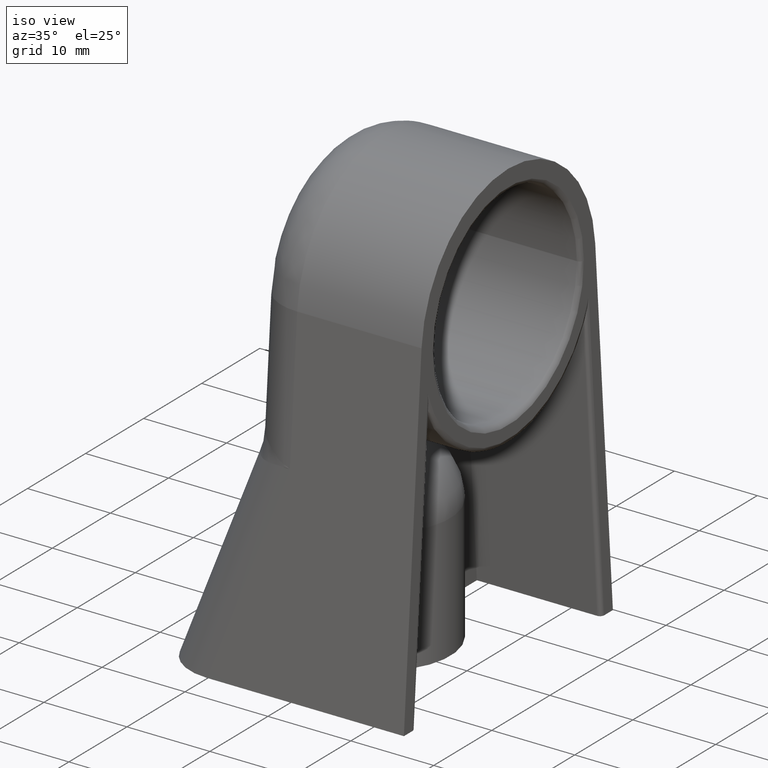
[diagram: clean part render]
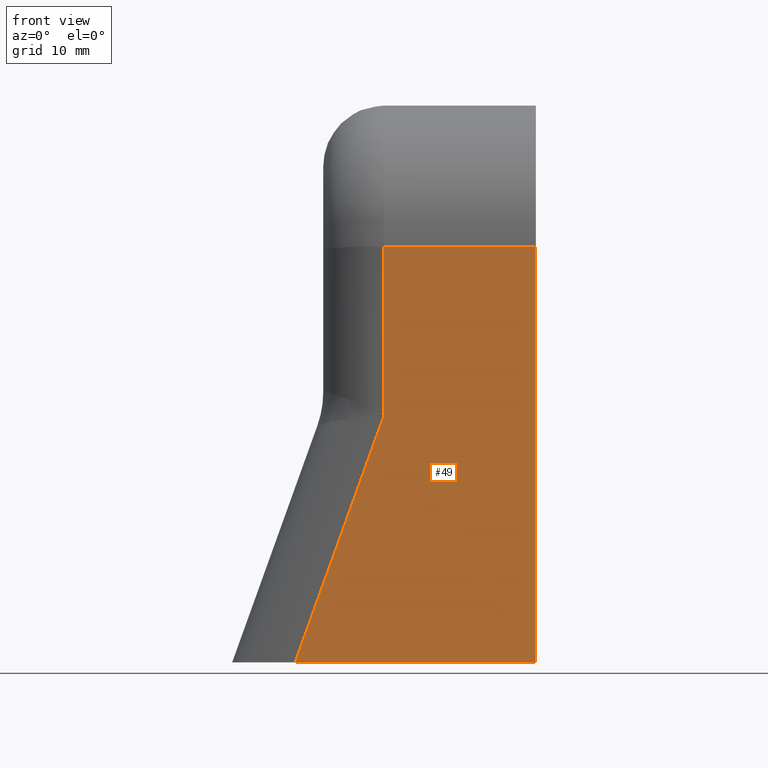
[diagram: tour spotlight — one face highlighted and labeled with its STEP entity id]
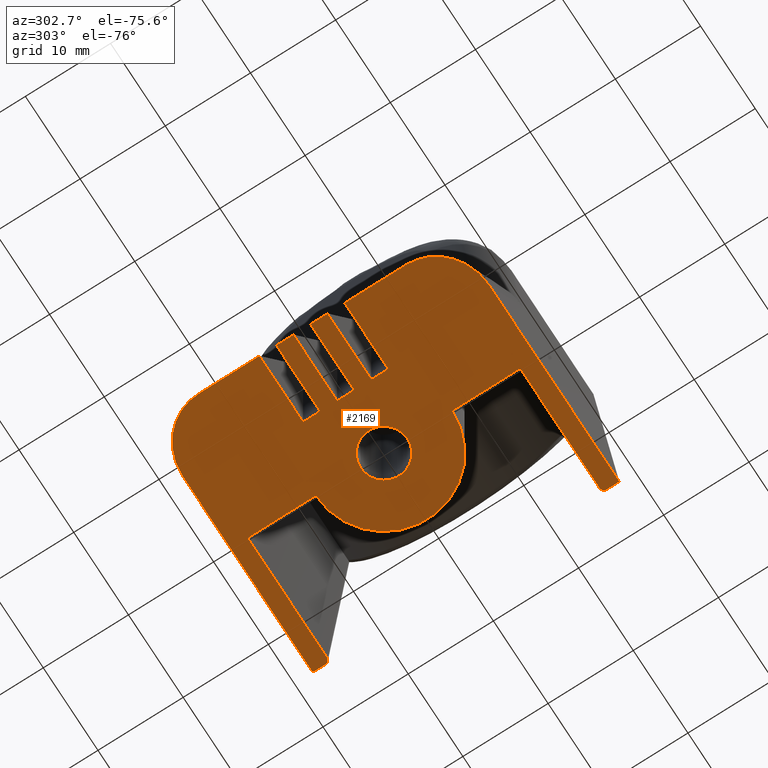
[diagram: tour spotlight — one face highlighted and labeled with its STEP entity id]
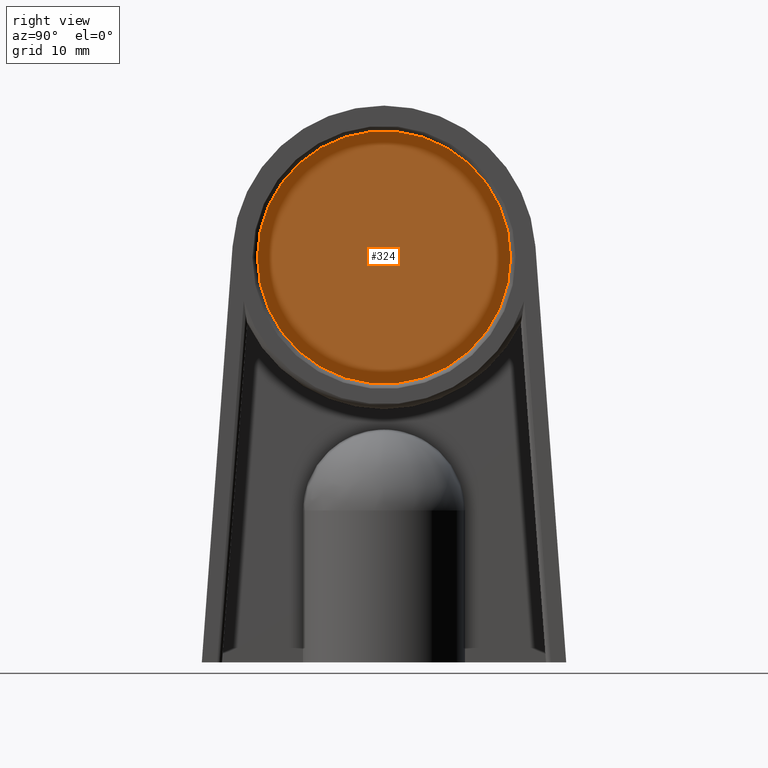
[diagram: tour spotlight — one face highlighted and labeled with its STEP entity id]
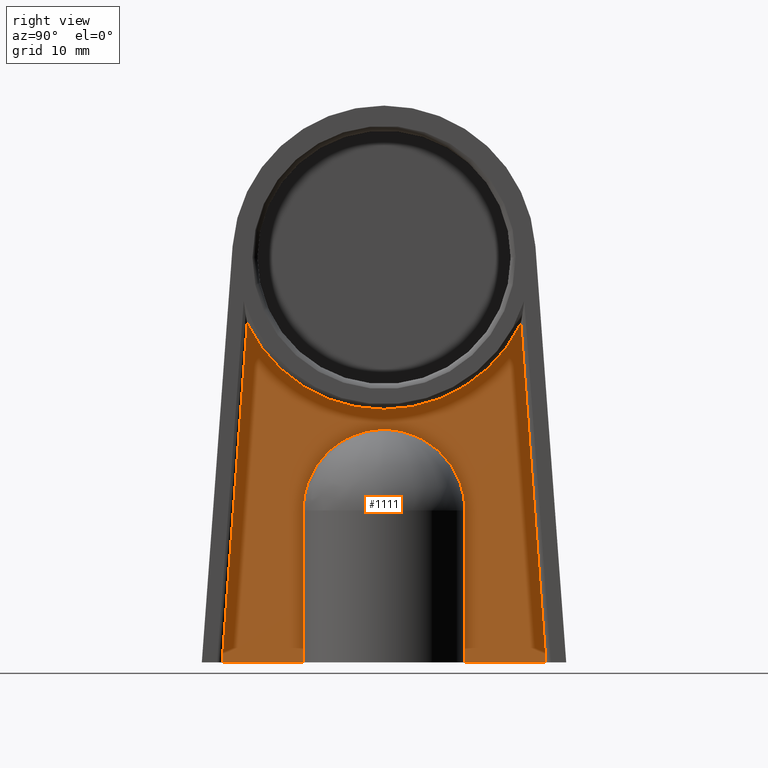
[diagram: tour spotlight — one face highlighted and labeled with its STEP entity id]
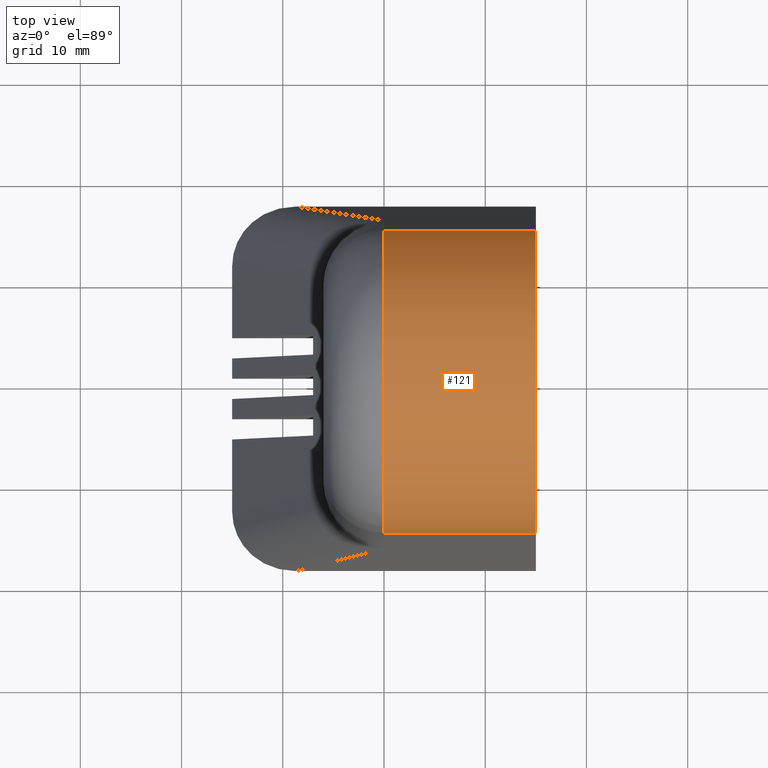
[diagram: tour spotlight — one face highlighted and labeled with its STEP entity id]
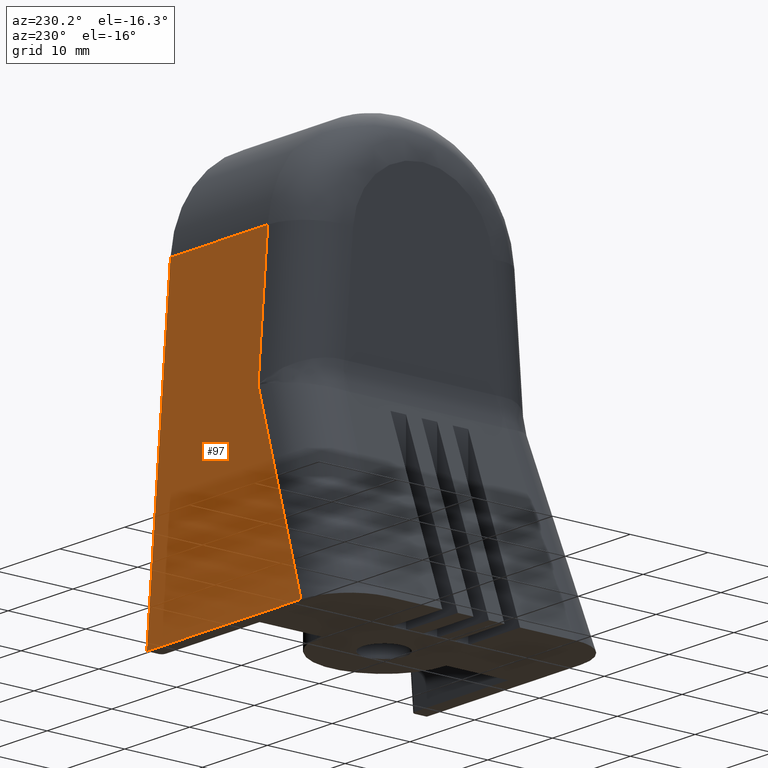
[diagram: tour spotlight — one face highlighted and labeled with its STEP entity id]
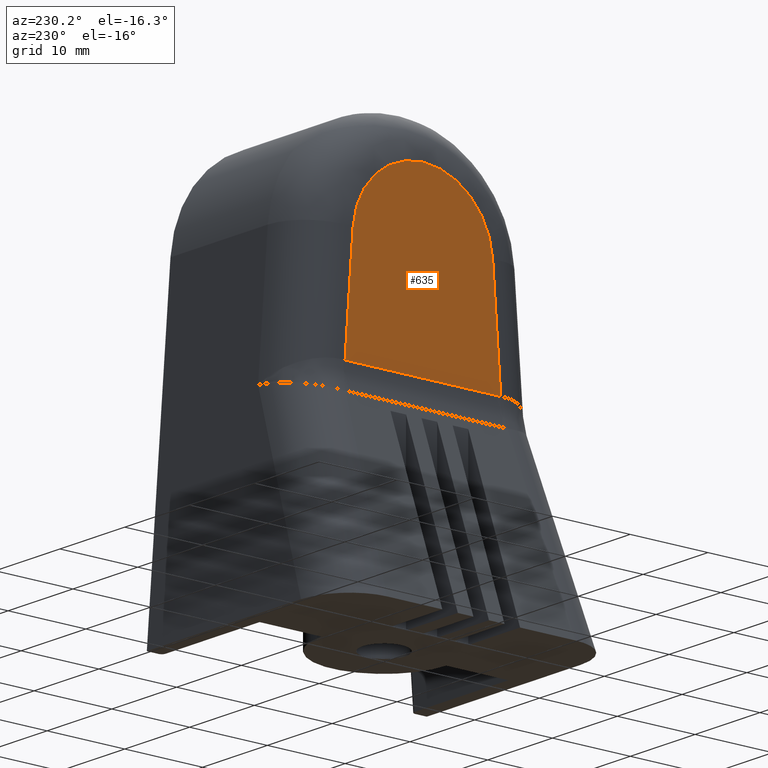
[diagram: tour spotlight — one face highlighted and labeled with its STEP entity id]
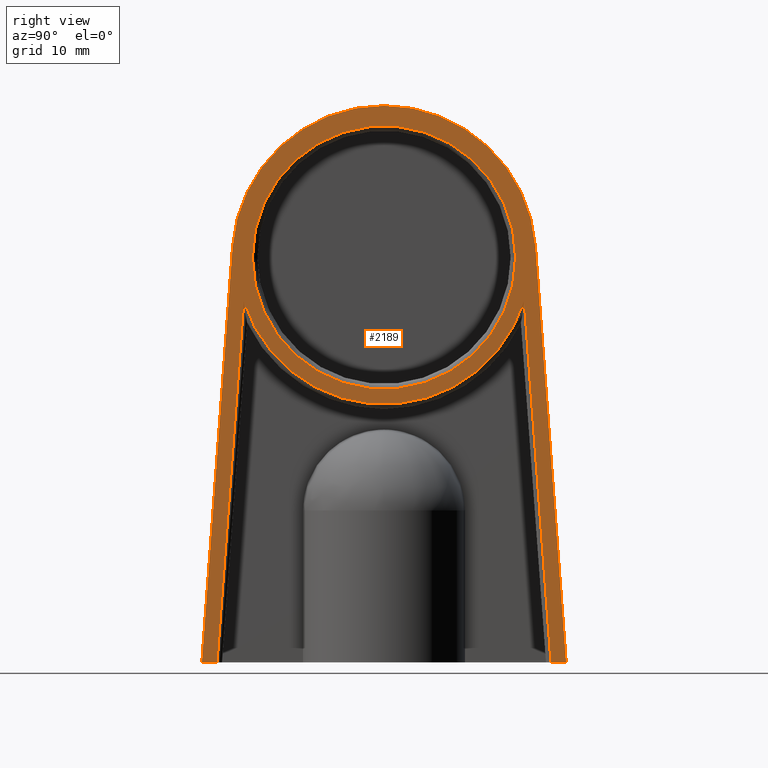
[diagram: tour spotlight — one face highlighted and labeled with its STEP entity id]
A machine part: a face-by-face anatomy tour. The part has 40 B-rep faces; the first image is the clean iso view, then the 8 largest visible faces are spotlighted one at a time (largest first), each with its STEP entity span.

Face 1 — front view, entity #49. In plain terms, the highlighted planar face has unit normal (-0, -0.9973, 0.0738).
Definition (entity closure, byte-faithful):
#2=CARTESIAN_POINT('',(-14.999999999999998,-14.959125059578962,41.106606276810538));
#3=DIRECTION('',(-6.106548E-017,-0.997275003971931,0.073773751787369));
#4=DIRECTION('',(-4.517339E-018,-0.073773751787369,-0.997275003971931));
#5=AXIS2_PLACEMENT_3D('',#2,#3,#4);
#6=PLANE('',#5);
#7=CARTESIAN_POINT('',(15.000000000000002,-14.959125059578966,41.106606276810538));
#8=VERTEX_POINT('',#7);
#9=CARTESIAN_POINT('',(15.000000000000002,-17.999999999999996,1.102182E-015));
#10=VERTEX_POINT('',#9);
#11=CARTESIAN_POINT('',(15.000000000000002,-14.959125059578962,41.106606276810538));
#12=DIRECTION('',(0.0,-0.073773751787369,-0.997275003971931));
#13=VECTOR('',#12,41.218927691049899);
#14=LINE('',#11,#13);
#15=EDGE_CURVE('',#8,#10,#14,.T.);
#16=ORIENTED_EDGE('',*,*,#15,.F.);
#17=CARTESIAN_POINT('',(2.636731E-015,-14.959125059578957,41.106606276810538));
#18=VERTEX_POINT('',#17);
#19=CARTESIAN_POINT('',(1.776357E-015,-14.959125059578964,41.106606276810538));
#20=DIRECTION('',(1.0,0.0,0.0));
#21=VECTOR('',#20,15.0);
#22=LINE('',#19,#21);
#23=EDGE_CURVE('',#18,#8,#22,.T.);
#24=ORIENTED_EDGE('',*,*,#23,.F.);
#25=CARTESIAN_POINT('',(-9.916781E-016,-16.195332106218849,24.395535503275639));
#26=VERTEX_POINT('',#25);
#27=CARTESIAN_POINT('',(8.603746E-016,-14.959125059578964,41.106606276810538));
#28=DIRECTION('',(-1.105259E-016,-0.073773751787369,-0.997275003971931));
#29=VECTOR('',#28,16.756732803868850);
#30=LINE('',#27,#29);
#31=EDGE_CURVE('',#18,#26,#30,.T.);
#32=ORIENTED_EDGE('',*,*,#31,.T.);
#33=CARTESIAN_POINT('',(-8.782392781179231,-17.999999999999993,1.102182E-015));
#34=VERTEX_POINT('',#33);
#35=CARTESIAN_POINT('',(-8.782392781179231,-17.999999999999993,1.102182E-015));
#36=DIRECTION('',(0.337901973678419,0.069434476268191,0.938616593551164));
#37=VECTOR('',#36,25.990948456363334);
#38=LINE('',#35,#37);
#39=EDGE_CURVE('',#34,#26,#38,.T.);
#40=ORIENTED_EDGE('',*,*,#39,.F.);
#41=CARTESIAN_POINT('',(-8.782392781179231,-17.999999999999996,1.102182E-015));
#42=DIRECTION('',(1.0,0.0,0.0));
#43=VECTOR('',#42,23.782392781179233);
#44=LINE('',#41,#43);
#45=EDGE_CURVE('',#34,#10,#44,.T.);
#46=ORIENTED_EDGE('',*,*,#45,.T.);
#47=EDGE_LOOP('',(#16,#24,#32,#40,#46));
#48=FACE_OUTER_BOUND('',#47,.T.);
#49=ADVANCED_FACE('',(#48),#6,.T.);

Face 2 — auxiliary view, entity #2169. In plain terms, the highlighted planar face has unit normal (0, 0, -1).
Definition (entity closure, byte-faithful):
#9=CARTESIAN_POINT('',(15.000000000000002,-17.999999999999996,1.102182E-015));
#10=VERTEX_POINT('',#9);
#33=CARTESIAN_POINT('',(-8.782392781179231,-17.999999999999993,1.102182E-015));
#34=VERTEX_POINT('',#33);
#41=CARTESIAN_POINT('',(-8.782392781179231,-17.999999999999996,1.102182E-015));
#42=DIRECTION('',(1.0,0.0,0.0));
#43=VECTOR('',#42,23.782392781179233);
#44=LINE('',#41,#43);
#45=EDGE_CURVE('',#34,#10,#44,.T.);
#55=CARTESIAN_POINT('',(-8.782392781179228,18.000000000000004,-1.102182E-015));
#56=VERTEX_POINT('',#55);
#57=CARTESIAN_POINT('',(15.000000000000005,18.000000000000004,-1.102182E-015));
#58=VERTEX_POINT('',#57);
#59=CARTESIAN_POINT('',(-8.782392781179230,18.000000000000004,-1.102182E-015));
#60=DIRECTION('',(1.0,0.0,0.0));
#61=VECTOR('',#60,23.782392781179233);
#62=LINE('',#59,#61);
#63=EDGE_CURVE('',#56,#58,#62,.T.);
#330=CARTESIAN_POINT('',(-14.999999999999996,12.133946663825908,-7.429899E-016));
#331=VERTEX_POINT('',#330);
#332=CARTESIAN_POINT('',(-8.623041477318511,11.983605348471295,-7.337842E-016));
#333=DIRECTION('',(1.540744E-033,6.123234E-017,1.000000000000000));
#334=DIRECTION('',(0.979533453288142,-0.201281429569165,1.232493E-017));
#335=AXIS2_PLACEMENT_3D('',#332,#333,#334);
#336=ELLIPSE('',#335,6.392386456007121,6.000000000000002);
#337=EDGE_CURVE('',#56,#331,#336,.T.);
#409=CARTESIAN_POINT('',(-14.999999999999996,5.000000000000001,-3.061617E-016));
#410=VERTEX_POINT('',#409);
#411=CARTESIAN_POINT('',(-14.999999999999995,5.0,-3.061617E-016));
#412=DIRECTION('',(0.0,1.0,0.0));
#413=VECTOR('',#412,7.133946663825906);
#414=LINE('',#411,#413);
#415=EDGE_CURVE('',#410,#331,#414,.T.);
#433=CARTESIAN_POINT('',(-14.999999999999996,3.000000000000001,-1.836970E-016));
#434=VERTEX_POINT('',#433);
#441=CARTESIAN_POINT('',(-14.999999999999996,1.000000000000001,-6.123234E-017));
#442=VERTEX_POINT('',#441);
#443=CARTESIAN_POINT('',(-14.999999999999996,1.0,-6.123234E-017));
#444=DIRECTION('',(0.0,1.0,0.0));
#445=VECTOR('',#444,2.0);
#446=LINE('',#443,#445);
#447=EDGE_CURVE('',#442,#434,#446,.T.);
#465=CARTESIAN_POINT('',(-14.999999999999996,-0.999999999999999,6.123234E-017));
#466=VERTEX_POINT('',#465);
#473=CARTESIAN_POINT('',(-14.999999999999996,-2.999999999999996,1.836970E-016));
#474=VERTEX_POINT('',#473);
#475=CARTESIAN_POINT('',(-14.999999999999996,-2.999999999999996,1.836970E-016));
#476=DIRECTION('',(0.0,1.0,0.0));
#477=VECTOR('',#476,1.999999999999996);
#478=LINE('',#475,#477);
#479=EDGE_CURVE('',#474,#466,#478,.T.);
#497=CARTESIAN_POINT('',(-14.999999999999996,-4.999999999999996,3.061617E-016));
#498=VERTEX_POINT('',#497);
#505=CARTESIAN_POINT('',(-14.999999999999996,-12.133946663825897,7.429899E-016));
#506=VERTEX_POINT('',#505);
#507=CARTESIAN_POINT('',(-14.999999999999996,-12.133946663825899,7.429899E-016));
#508=DIRECTION('',(0.0,1.0,0.0));
#509=VECTOR('',#508,7.133946663825903);
#510=LINE('',#507,#509);
#511=EDGE_CURVE('',#506,#498,#510,.T.);
#569=CARTESIAN_POINT('',(-8.623041477318511,-11.983605348471290,7.337842E-016));
#570=DIRECTION('',(0.0,-6.123234E-017,-1.0));
#571=DIRECTION('',(0.979533453288142,0.201281429569165,-1.232493E-017));
#572=AXIS2_PLACEMENT_3D('',#569,#570,#571);
#573=ELLIPSE('',#572,6.392386456007119,6.0);
#574=EDGE_CURVE('',#34,#506,#573,.T.);
#1033=CARTESIAN_POINT('',(-9.793828E-016,-15.994535116157088,9.793828E-016));
#1034=VERTEX_POINT('',#1033);
#1041=CARTESIAN_POINT('',(3.062855E-015,-8.0,4.898587E-016));
#1042=VERTEX_POINT('',#1041);
#1043=CARTESIAN_POINT('',(-4.898587E-016,-8.0,4.898587E-016));
#1044=DIRECTION('',(0.0,-1.0,0.0));
#1045=VECTOR('',#1044,7.994535116157088);
#1046=LINE('',#1043,#1045);
#1047=EDGE_CURVE('',#1042,#1034,#1046,.T.);
#1087=CARTESIAN_POINT('',(4.898587E-016,8.0,-4.898587E-016));
#1088=VERTEX_POINT('',#1087);
#1095=CARTESIAN_POINT('',(9.793828E-016,15.994535116157088,-9.793828E-016));
#1096=VERTEX_POINT('',#1095);
#1097=CARTESIAN_POINT('',(9.793828E-016,15.994535116157088,-9.793828E-016));
#1098=DIRECTION('',(0.0,-1.0,0.0));
#1099=VECTOR('',#1098,7.994535116157088);
#1100=LINE('',#1097,#1099);
#1101=EDGE_CURVE('',#1096,#1088,#1100,.T.);
#1310=CARTESIAN_POINT('',(0.0,0.0,0.0));
#1311=DIRECTION('',(-6.842278E-049,-6.123234E-017,-1.0));
#1312=DIRECTION('',(6.123234E-017,1.0,-6.123234E-017));
#1313=AXIS2_PLACEMENT_3D('',#1310,#1311,#1312);
#1314=CIRCLE('',#1313,8.0);
#1315=EDGE_CURVE('',#1088,#1042,#1314,.T.);
#1346=CARTESIAN_POINT('',(1.683889E-016,2.750000000000000,-1.683889E-016));
#1347=VERTEX_POINT('',#1346);
#1354=CARTESIAN_POINT('',(-1.683889E-016,-2.750000000000000,1.683889E-016));
#1355=VERTEX_POINT('',#1354);
#1356=CARTESIAN_POINT('',(0.0,0.0,0.0));
#1357=DIRECTION('',(-6.842278E-049,-6.123234E-017,-1.0));
#1358=DIRECTION('',(6.123234E-017,1.0,-6.123234E-017));
#1359=AXIS2_PLACEMENT_3D('',#1356,#1357,#1358);
#1360=CIRCLE('',#1359,2.750000000000000);
#1361=EDGE_CURVE('',#1347,#1355,#1360,.T.);
#1363=CARTESIAN_POINT('',(0.0,0.0,0.0));
#1364=DIRECTION('',(-6.842278E-049,-6.123234E-017,-1.0));
#1365=DIRECTION('',(6.123234E-017,1.0,-6.123234E-017));
#1366=AXIS2_PLACEMENT_3D('',#1363,#1364,#1365);
#1367=CIRCLE('',#1366,2.750000000000000);
#1368=EDGE_CURVE('',#1355,#1347,#1367,.T.);
#1390=CARTESIAN_POINT('',(-6.999999999999996,1.000000000000001,-6.123234E-017));
#1391=VERTEX_POINT('',#1390);
#1398=CARTESIAN_POINT('',(-6.999999999999996,-0.999999999999999,6.123234E-017));
#1399=VERTEX_POINT('',#1398);
#1400=CARTESIAN_POINT('',(-6.999999999999996,-0.999999999999999,6.123234E-017));
#1401=DIRECTION('',(0.0,1.0,0.0));
#1402=VECTOR('',#1401,2.000000000000000);
#1403=LINE('',#1400,#1402);
#1404=EDGE_CURVE('',#1399,#1391,#1403,.T.);
#1421=CARTESIAN_POINT('',(-14.999999999999996,1.000000000000001,-6.123234E-017));
#1422=DIRECTION('',(1.0,0.0,0.0));
#1423=VECTOR('',#1422,8.0);
#1424=LINE('',#1421,#1423);
#1425=EDGE_CURVE('',#442,#1391,#1424,.T.);
#1437=CARTESIAN_POINT('',(-14.999999999999996,-0.999999999999999,6.123234E-017));
#1438=DIRECTION('',(1.0,0.0,0.0));
#1439=VECTOR('',#1438,8.0);
#1440=LINE('',#1437,#1439);
#1441=EDGE_CURVE('',#466,#1399,#1440,.T.);
#1453=CARTESIAN_POINT('',(-6.999999999999996,5.0,-3.061617E-016));
#1454=VERTEX_POINT('',#1453);
#1461=CARTESIAN_POINT('',(-6.999999999999996,3.000000000000000,-1.836970E-016));
#1462=VERTEX_POINT('',#1461);
#1463=CARTESIAN_POINT('',(-6.999999999999996,3.000000000000000,-1.836970E-016));
#1464=DIRECTION('',(0.0,1.0,0.0));
#1465=VECTOR('',#1464,2.000000000000000);
#1466=LINE('',#1463,#1465);
#1467=EDGE_CURVE('',#1462,#1454,#1466,.T.);
#1484=CARTESIAN_POINT('',(-14.999999999999996,5.000000000000001,-3.061617E-016));
#1485=DIRECTION('',(1.0,0.0,0.0));
#1486=VECTOR('',#1485,8.0);
#1487=LINE('',#1484,#1486);
#1488=EDGE_CURVE('',#410,#1454,#1487,.T.);
#1500=CARTESIAN_POINT('',(-14.999999999999996,3.000000000000001,-1.836970E-016));
#1501=DIRECTION('',(1.0,0.0,0.0));
#1502=VECTOR('',#1501,8.0);
#1503=LINE('',#1500,#1502);
#1504=EDGE_CURVE('',#434,#1462,#1503,.T.);
#1516=CARTESIAN_POINT('',(-6.999999999999996,-2.999999999999998,1.836970E-016));
#1517=VERTEX_POINT('',#1516);
#1524=CARTESIAN_POINT('',(-6.999999999999996,-4.999999999999998,3.061617E-016));
#1525=VERTEX_POINT('',#1524);
#1526=CARTESIAN_POINT('',(-6.999999999999996,-4.999999999999998,3.061617E-016));
#1527=DIRECTION('',(0.0,1.0,0.0));
#1528=VECTOR('',#1527,2.000000000000000);
#1529=LINE('',#1526,#1528);
#1530=EDGE_CURVE('',#1525,#1517,#1529,.T.);
#1547=CARTESIAN_POINT('',(-14.999999999999996,-2.999999999999996,1.836970E-016));
#1548=DIRECTION('',(1.0,0.0,0.0));
#1549=VECTOR('',#1548,8.0);
#1550=LINE('',#1547,#1549);
#1551=EDGE_CURVE('',#474,#1517,#1550,.T.);
#1563=CARTESIAN_POINT('',(-14.999999999999996,-4.999999999999996,3.061617E-016));
#1564=DIRECTION('',(1.0,0.0,0.0));
#1565=VECTOR('',#1564,8.0);
#1566=LINE('',#1563,#1565);
#1567=EDGE_CURVE('',#498,#1525,#1566,.T.);
#2053=CARTESIAN_POINT('',(14.500000000000005,15.994535116157088,-9.793828E-016));
#2054=VERTEX_POINT('',#2053);
#2061=CARTESIAN_POINT('',(15.000000000000005,16.495901337117814,-1.010083E-015));
#2062=VERTEX_POINT('',#2061);
#2063=CARTESIAN_POINT('',(14.500000000000005,16.495901337117814,-1.010083E-015));
#2064=DIRECTION('',(6.842278E-049,6.123234E-017,1.0));
#2065=DIRECTION('',(-6.123234E-017,-1.0,6.123234E-017));
#2066=AXIS2_PLACEMENT_3D('',#2063,#2064,#2065);
#2067=ELLIPSE('',#2066,0.501366220960725,0.499999999999999);
#2068=EDGE_CURVE('',#2054,#2062,#2067,.T.);
#2086=CARTESIAN_POINT('',(15.000000000000002,-16.495901337117814,1.010083E-015));
#2087=VERTEX_POINT('',#2086);
#2094=CARTESIAN_POINT('',(14.500000000000002,-15.994535116157088,9.793828E-016));
#2095=VERTEX_POINT('',#2094);
#2096=CARTESIAN_POINT('',(14.500000000000002,-16.495901337117889,1.010083E-015));
#2097=DIRECTION('',(-6.842278E-049,-6.123234E-017,-1.0));
#2098=DIRECTION('',(-6.123234E-017,-1.0,6.123234E-017));
#2099=AXIS2_PLACEMENT_3D('',#2096,#2097,#2098);
#2100=ELLIPSE('',#2099,0.501366220960725,0.499999999999999);
#2101=EDGE_CURVE('',#2095,#2087,#2100,.T.);
#2112=CARTESIAN_POINT('',(-15.000389578063274,-18.000389578063274,1.102206E-015));
#2113=DIRECTION('',(0.0,0.0,-1.0));
#2114=DIRECTION('',(0.0,1.0,0.0));
#2115=AXIS2_PLACEMENT_3D('',#2112,#2113,#2114);
#2116=PLANE('',#2115);
#2117=ORIENTED_EDGE('',*,*,#63,.T.);
#2118=CARTESIAN_POINT('',(15.000000000000005,16.495901337117814,-1.010083E-015));
#2119=DIRECTION('',(0.0,1.0,0.0));
#2120=VECTOR('',#2119,1.504098662882189);
#2121=LINE('',#2118,#2120);
#2122=EDGE_CURVE('',#2062,#58,#2121,.T.);
#2123=ORIENTED_EDGE('',*,*,#2122,.F.);
#2124=ORIENTED_EDGE('',*,*,#2068,.F.);
#2125=CARTESIAN_POINT('',(14.500000000000005,15.994535116157090,-9.793828E-016));
#2126=DIRECTION('',(-1.0,0.0,0.0));
#2127=VECTOR('',#2126,14.500000000000004);
#2128=LINE('',#2125,#2127);
#2129=EDGE_CURVE('',#2054,#1096,#2128,.T.);
#2130=ORIENTED_EDGE('',*,*,#2129,.T.);
#2131=ORIENTED_EDGE('',*,*,#1101,.T.);
#2132=ORIENTED_EDGE('',*,*,#1315,.T.);
#2133=ORIENTED_EDGE('',*,*,#1047,.T.);
#2134=CARTESIAN_POINT('',(14.500000000000002,-15.994535116157087,9.793828E-016));
#2135=DIRECTION('',(-1.0,0.0,0.0));
#2136=VECTOR('',#2135,14.500000000000004);
#2137=LINE('',#2134,#2136);
#2138=EDGE_CURVE('',#2095,#1034,#2137,.T.);
#2139=ORIENTED_EDGE('',*,*,#2138,.F.);
#2140=ORIENTED_EDGE('',*,*,#2101,.T.);
#2141=CARTESIAN_POINT('',(15.000000000000004,-17.999999999999996,1.102182E-015));
#2142=DIRECTION('',(0.0,1.0,0.0));
#2143=VECTOR('',#2142,1.504098662882186);
#2144=LINE('',#2141,#2143);
#2145=EDGE_CURVE('',#10,#2087,#2144,.T.);
#2146=ORIENTED_EDGE('',*,*,#2145,.F.);
#2147=ORIENTED_EDGE('',*,*,#45,.F.);
#2148=ORIENTED_EDGE('',*,*,#574,.T.);
#2149=ORIENTED_EDGE('',*,*,#511,.T.);
#2150=ORIENTED_EDGE('',*,*,#1567,.T.);
#2151=ORIENTED_EDGE('',*,*,#1530,.T.);
#2152=ORIENTED_EDGE('',*,*,#1551,.F.);
#2153=ORIENTED_EDGE('',*,*,#479,.T.);
#2154=ORIENTED_EDGE('',*,*,#1441,.T.);
#2155=ORIENTED_EDGE('',*,*,#1404,.T.);
#2156=ORIENTED_EDGE('',*,*,#1425,.F.);
#2157=ORIENTED_EDGE('',*,*,#447,.T.);
#2158=ORIENTED_EDGE('',*,*,#1504,.T.);
#2159=ORIENTED_EDGE('',*,*,#1467,.T.);
#2160=ORIENTED_EDGE('',*,*,#1488,.F.);
#2161=ORIENTED_EDGE('',*,*,#415,.T.);
#2162=ORIENTED_EDGE('',*,*,#337,.F.);
#2163=EDGE_LOOP('',(#2117,#2123,#2124,#2130,#2131,#2132,#2133,#2139,#2140,#2146,#2147,#2148,#2149,#2150,#2151,#2152,#2153,#2154,#2155,#2156,#2157,#2158,#2159,#2160,#2161,#2162));
#2164=FACE_OUTER_BOUND('',#2163,.T.);
#2165=ORIENTED_EDGE('',*,*,#1368,.F.);
#2166=ORIENTED_EDGE('',*,*,#1361,.F.);
#2167=EDGE_LOOP('',(#2165,#2166));
#2168=FACE_BOUND('',#2167,.T.);
#2169=ADVANCED_FACE('',(#2164,#2168),#2116,.T.);

Face 3 — right view, entity #324. In plain terms, the highlighted planar face has unit normal (1, 0, 0).
Definition (entity closure, byte-faithful):
#299=CARTESIAN_POINT('',(-2.999999999999996,15.000057927716453,24.999942072253020));
#300=DIRECTION('',(1.0,0.0,0.0));
#301=DIRECTION('',(0.0,0.0,1.0));
#302=AXIS2_PLACEMENT_3D('',#299,#300,#301);
#303=PLANE('',#302);
#304=CARTESIAN_POINT('',(-2.999999999999996,12.500000000000005,40.0));
#305=VERTEX_POINT('',#304);
#306=CARTESIAN_POINT('',(-2.999999999999997,-12.499999999999995,40.0));
#307=VERTEX_POINT('',#306);
#308=CARTESIAN_POINT('',(-2.999999999999996,6.185704E-015,40.0));
#309=DIRECTION('',(1.0,-6.123234E-017,3.749399E-033));
#310=DIRECTION('',(6.123234E-017,1.0,-6.123234E-017));
#311=AXIS2_PLACEMENT_3D('',#308,#309,#310);
#312=CIRCLE('',#311,12.500000000000000);
#313=EDGE_CURVE('',#305,#307,#312,.T.);
#314=ORIENTED_EDGE('',*,*,#313,.T.);
#315=CARTESIAN_POINT('',(-2.999999999999996,6.185704E-015,40.0));
#316=DIRECTION('',(1.0,-6.123234E-017,3.749399E-033));
#317=DIRECTION('',(6.123234E-017,1.0,-6.123234E-017));
#318=AXIS2_PLACEMENT_3D('',#315,#316,#317);
#319=CIRCLE('',#318,12.500000000000000);
#320=EDGE_CURVE('',#307,#305,#319,.T.);
#321=ORIENTED_EDGE('',*,*,#320,.T.);
#322=EDGE_LOOP('',(#314,#321));
#323=FACE_OUTER_BOUND('',#322,.T.);
#324=ADVANCED_FACE('',(#323),#303,.T.);

Face 4 — right view, entity #1111. In plain terms, the highlighted planar face has unit normal (1, 0, 0).
Definition (entity closure, byte-faithful):
#1017=CARTESIAN_POINT('',(-1.193337E-015,-19.488669970308656,-7.007923753111839));
#1018=DIRECTION('',(1.0,0.0,0.0));
#1019=DIRECTION('',(0.0,1.0,0.0));
#1020=AXIS2_PLACEMENT_3D('',#1017,#1018,#1019);
#1021=PLANE('',#1020);
#1022=CARTESIAN_POINT('',(8.276559E-016,13.516647258285571,33.496136002722608));
#1023=VERTEX_POINT('',#1022);
#1024=CARTESIAN_POINT('',(-8.276559E-016,-13.516647258285577,33.496136002722558));
#1025=VERTEX_POINT('',#1024);
#1026=CARTESIAN_POINT('',(1.704988E-031,5.329071E-015,40.000000000000007));
#1027=DIRECTION('',(-1.0,6.123234E-017,-3.081488E-033));
#1028=DIRECTION('',(-5.517706E-017,-0.901109817219037,-0.433590933151829));
#1029=AXIS2_PLACEMENT_3D('',#1026,#1027,#1028);
#1030=CIRCLE('',#1029,14.999999999999989);
#1031=EDGE_CURVE('',#1023,#1025,#1030,.T.);
#1032=ORIENTED_EDGE('',*,*,#1031,.T.);
#1033=CARTESIAN_POINT('',(-9.793828E-016,-15.994535116157088,9.793828E-016));
#1034=VERTEX_POINT('',#1033);
#1035=CARTESIAN_POINT('',(-8.276559E-016,-13.516647258285577,33.496136002722551));
#1036=DIRECTION('',(-4.517339E-018,-0.073773751787369,-0.997275003971931));
#1037=VECTOR('',#1036,33.587662248943033);
#1038=LINE('',#1035,#1037);
#1039=EDGE_CURVE('',#1025,#1034,#1038,.T.);
#1040=ORIENTED_EDGE('',*,*,#1039,.T.);
#1041=CARTESIAN_POINT('',(3.062855E-015,-8.0,4.898587E-016));
#1042=VERTEX_POINT('',#1041);
#1043=CARTESIAN_POINT('',(-4.898587E-016,-8.0,4.898587E-016));
#1044=DIRECTION('',(0.0,-1.0,0.0));
#1045=VECTOR('',#1044,7.994535116157088);
#1046=LINE('',#1043,#1045);
#1047=EDGE_CURVE('',#1042,#1034,#1046,.T.);
#1048=ORIENTED_EDGE('',*,*,#1047,.F.);
#1049=CARTESIAN_POINT('',(4.839212E-015,-7.999999999999999,15.0));
#1050=VERTEX_POINT('',#1049);
#1051=CARTESIAN_POINT('',(3.062855E-015,-8.0,4.898587E-016));
#1052=DIRECTION('',(0.0,0.0,1.0));
#1053=VECTOR('',#1052,15.0);
#1054=LINE('',#1051,#1053);
#1055=EDGE_CURVE('',#1042,#1050,#1054,.T.);
#1056=ORIENTED_EDGE('',*,*,#1055,.T.);
#1057=CARTESIAN_POINT('',(1.735918E-047,1.408344E-015,23.0));
#1058=VERTEX_POINT('',#1057);
#1059=CARTESIAN_POINT('',(1.735918E-047,1.408344E-015,23.0));
#1060=CARTESIAN_POINT('',(-1.444674E-017,-0.235933228766618,23.0));
#1061=CARTESIAN_POINT('',(-5.284360E-017,-0.863001493992146,22.972224076223242));
#1062=CARTESIAN_POINT('',(-1.454947E-016,-2.376109016898513,22.725517590091513));
#1063=CARTESIAN_POINT('',(-2.703129E-016,-4.414544804670387,21.853812521275259));
#1064=CARTESIAN_POINT('',(-3.930465E-016,-6.418936653335783,20.020826234842332));
#1065=CARTESIAN_POINT('',(-4.620668E-016,-7.546123056102462,17.942043850855129));
#1066=CARTESIAN_POINT('',(-4.865356E-016,-7.945729469165522,16.210977359825478));
#1067=CARTESIAN_POINT('',(-4.898587E-016,-7.999999999999999,15.327043926945123));
#1068=CARTESIAN_POINT('',(-4.898587E-016,-7.999999999999999,15.0));
#1069=B_SPLINE_CURVE_WITH_KNOTS('',3,(#1059,#1060,#1061,#1062,#1063,#1064,#1065,#1066,#1067,#1068),.UNSPECIFIED.,.F.,.U.,(4,1,1,1,1,1,1,4),(0.0,0.708022473487354,1.880800532772505,4.587017613098299,7.264870905812752,9.915573074247492,11.584533698817506,12.566275242682220),.UNSPECIFIED.);
#1070=EDGE_CURVE('',#1058,#1050,#1069,.T.);
#1071=ORIENTED_EDGE('',*,*,#1070,.F.);
#1072=CARTESIAN_POINT('',(4.898587E-016,8.000000000000002,15.0));
#1073=VERTEX_POINT('',#1072);
#1074=CARTESIAN_POINT('',(1.735918E-047,1.408344E-015,23.0));
#1075=CARTESIAN_POINT('',(3.192881E-017,0.521437045145683,23.0));
#1076=CARTESIAN_POINT('',(1.129861E-016,1.845203027089857,22.870300051576322));
#1077=CARTESIAN_POINT('',(2.249208E-016,3.673234618763290,22.211320699448365));
#1078=CARTESIAN_POINT('',(3.285916E-016,5.366308150762056,21.032099298314364));
#1079=CARTESIAN_POINT('',(3.901559E-016,6.371729208637647,19.904096816385618));
#1080=CARTESIAN_POINT('',(4.464045E-016,7.290338484282587,18.436775413166060));
#1081=CARTESIAN_POINT('',(4.814132E-016,7.862074910433493,16.904664778834459));
#1082=CARTESIAN_POINT('',(4.898587E-016,8.000000000000002,15.536480270114765));
#1083=CARTESIAN_POINT('',(4.898587E-016,8.000000000000002,15.0));
#1084=B_SPLINE_CURVE_WITH_KNOTS('',3,(#1074,#1075,#1076,#1077,#1078,#1079,#1080,#1081,#1082,#1083),.UNSPECIFIED.,.F.,.U.,(4,1,1,1,1,1,1,4),(0.0,1.566797559980745,3.966762403885307,5.766736036813657,7.716707472486053,8.466696486206210,10.954050738267860,12.566199187435556),.UNSPECIFIED.);
#1085=EDGE_CURVE('',#1058,#1073,#1084,.T.);
#1086=ORIENTED_EDGE('',*,*,#1085,.T.);
#1087=CARTESIAN_POINT('',(4.898587E-016,8.0,-4.898587E-016));
#1088=VERTEX_POINT('',#1087);
#1089=CARTESIAN_POINT('',(4.898587E-016,8.0,-4.898587E-016));
#1090=DIRECTION('',(0.0,0.0,1.0));
#1091=VECTOR('',#1090,15.0);
#1092=LINE('',#1089,#1091);
#1093=EDGE_CURVE('',#1088,#1073,#1092,.T.);
#1094=ORIENTED_EDGE('',*,*,#1093,.F.);
#1095=CARTESIAN_POINT('',(9.793828E-016,15.994535116157088,-9.793828E-016));
#1096=VERTEX_POINT('',#1095);
#1097=CARTESIAN_POINT('',(9.793828E-016,15.994535116157088,-9.793828E-016));
#1098=DIRECTION('',(0.0,-1.0,0.0));
#1099=VECTOR('',#1098,7.994535116157088);
#1100=LINE('',#1097,#1099);
#1101=EDGE_CURVE('',#1096,#1088,#1100,.T.);
#1102=ORIENTED_EDGE('',*,*,#1101,.F.);
#1103=CARTESIAN_POINT('',(9.793828E-016,15.994535116157090,-1.332268E-015));
#1104=DIRECTION('',(-4.517339E-018,-0.073773751787369,0.997275003971931));
#1105=VECTOR('',#1104,33.587662248943090);
#1106=LINE('',#1103,#1105);
#1107=EDGE_CURVE('',#1096,#1023,#1106,.T.);
#1108=ORIENTED_EDGE('',*,*,#1107,.T.);
#1109=EDGE_LOOP('',(#1032,#1040,#1048,#1056,#1071,#1086,#1094,#1102,#1108));
#1110=FACE_OUTER_BOUND('',#1109,.T.);
#1111=ADVANCED_FACE('',(#1110),#1021,.T.);

Face 5 — top view, entity #121. In plain terms, the highlighted cylindrical surface (partial cylindrical patch) has radius 15 mm, axis along (1, -0, 0).
Definition (entity closure, byte-faithful):
#7=CARTESIAN_POINT('',(15.000000000000002,-14.959125059578966,41.106606276810538));
#8=VERTEX_POINT('',#7);
#17=CARTESIAN_POINT('',(2.636731E-015,-14.959125059578957,41.106606276810538));
#18=VERTEX_POINT('',#17);
#19=CARTESIAN_POINT('',(1.776357E-015,-14.959125059578964,41.106606276810538));
#20=DIRECTION('',(1.0,0.0,0.0));
#21=VECTOR('',#20,15.0);
#22=LINE('',#19,#21);
#23=EDGE_CURVE('',#18,#8,#22,.T.);
#73=CARTESIAN_POINT('',(2.692339E-015,14.959125059578964,41.106606276810538));
#74=VERTEX_POINT('',#73);
#81=CARTESIAN_POINT('',(15.000000000000005,14.959125059578962,41.106606276810538));
#82=VERTEX_POINT('',#81);
#83=CARTESIAN_POINT('',(3.552714E-015,14.959125059578964,41.106606276810538));
#84=DIRECTION('',(1.0,0.0,0.0));
#85=VECTOR('',#84,15.000000000000002);
#86=LINE('',#83,#85);
#87=EDGE_CURVE('',#74,#82,#86,.T.);
#98=CARTESIAN_POINT('',(-14.999999999999996,6.032314E-015,40.0));
#99=DIRECTION('',(1.0,-6.123234E-017,3.081488E-033));
#100=DIRECTION('',(6.106548E-017,0.997275003971931,0.073773751787369));
#101=AXIS2_PLACEMENT_3D('',#98,#99,#100);
#102=CYLINDRICAL_SURFACE('',#101,14.999999999999989);
#103=ORIENTED_EDGE('',*,*,#87,.F.);
#104=CARTESIAN_POINT('',(3.552714E-015,4.884981E-015,40.000000000000007));
#105=DIRECTION('',(-1.0,6.123234E-017,-3.081488E-033));
#106=DIRECTION('',(6.106548E-017,0.997275003971931,0.073773751787369));
#107=AXIS2_PLACEMENT_3D('',#104,#105,#106);
#108=CIRCLE('',#107,14.999999999999989);
#109=EDGE_CURVE('',#18,#74,#108,.T.);
#110=ORIENTED_EDGE('',*,*,#109,.F.);
#111=ORIENTED_EDGE('',*,*,#23,.T.);
#112=CARTESIAN_POINT('',(15.000000000000004,3.966496E-015,40.000000000000007));
#113=DIRECTION('',(1.0,-6.123234E-017,3.081488E-033));
#114=DIRECTION('',(6.106548E-017,0.997275003971931,0.073773751787369));
#115=AXIS2_PLACEMENT_3D('',#112,#113,#114);
#116=CIRCLE('',#115,14.999999999999989);
#117=EDGE_CURVE('',#82,#8,#116,.T.);
#118=ORIENTED_EDGE('',*,*,#117,.F.);
#119=EDGE_LOOP('',(#103,#110,#111,#118));
#120=FACE_OUTER_BOUND('',#119,.T.);
#121=ADVANCED_FACE('',(#120),#102,.T.);

Face 6 — auxiliary view, entity #97. In plain terms, the highlighted planar face has unit normal (0, 0.9973, 0.0738).
Definition (entity closure, byte-faithful):
#50=CARTESIAN_POINT('',(-14.999999999999995,18.000000000000004,-1.102182E-015));
#51=DIRECTION('',(6.106548E-017,0.997275003971931,0.073773751787369));
#52=DIRECTION('',(-4.517339E-018,-0.073773751787369,0.997275003971931));
#53=AXIS2_PLACEMENT_3D('',#50,#51,#52);
#54=PLANE('',#53);
#55=CARTESIAN_POINT('',(-8.782392781179228,18.000000000000004,-1.102182E-015));
#56=VERTEX_POINT('',#55);
#57=CARTESIAN_POINT('',(15.000000000000005,18.000000000000004,-1.102182E-015));
#58=VERTEX_POINT('',#57);
#59=CARTESIAN_POINT('',(-8.782392781179230,18.000000000000004,-1.102182E-015));
#60=DIRECTION('',(1.0,0.0,0.0));
#61=VECTOR('',#60,23.782392781179233);
#62=LINE('',#59,#61);
#63=EDGE_CURVE('',#56,#58,#62,.T.);
#64=ORIENTED_EDGE('',*,*,#63,.F.);
#65=CARTESIAN_POINT('',(9.916781E-016,16.195332106218853,24.395535503275624));
#66=VERTEX_POINT('',#65);
#67=CARTESIAN_POINT('',(-8.782392781179228,18.000000000000004,-1.102182E-015));
#68=DIRECTION('',(0.337901973678419,-0.069434476268192,0.938616593551164));
#69=VECTOR('',#68,25.990948456363334);
#70=LINE('',#67,#69);
#71=EDGE_CURVE('',#56,#66,#70,.T.);
#72=ORIENTED_EDGE('',*,*,#71,.T.);
#73=CARTESIAN_POINT('',(2.692339E-015,14.959125059578964,41.106606276810538));
#74=VERTEX_POINT('',#73);
#75=CARTESIAN_POINT('',(2.692339E-015,14.959125059578964,41.106606276810538));
#76=DIRECTION('',(-1.014912E-016,0.073773751787369,-0.997275003971931));
#77=VECTOR('',#76,16.756732803868864);
#78=LINE('',#75,#77);
#79=EDGE_CURVE('',#74,#66,#78,.T.);
#80=ORIENTED_EDGE('',*,*,#79,.F.);
#81=CARTESIAN_POINT('',(15.000000000000005,14.959125059578962,41.106606276810538));
#82=VERTEX_POINT('',#81);
#83=CARTESIAN_POINT('',(3.552714E-015,14.959125059578964,41.106606276810538));
#84=DIRECTION('',(1.0,0.0,0.0));
#85=VECTOR('',#84,15.000000000000002);
#86=LINE('',#83,#85);
#87=EDGE_CURVE('',#74,#82,#86,.T.);
#88=ORIENTED_EDGE('',*,*,#87,.T.);
#89=CARTESIAN_POINT('',(15.000000000000005,18.0,0.0));
#90=DIRECTION('',(0.0,-0.073773751787369,0.997275003971931));
#91=VECTOR('',#90,41.218927691049899);
#92=LINE('',#89,#91);
#93=EDGE_CURVE('',#58,#82,#92,.T.);
#94=ORIENTED_EDGE('',*,*,#93,.F.);
#95=EDGE_LOOP('',(#64,#72,#80,#88,#94));
#96=FACE_OUTER_BOUND('',#95,.T.);
#97=ADVANCED_FACE('',(#96),#54,.T.);

Face 7 — auxiliary view, entity #635. In plain terms, the highlighted planar face has unit normal (1, 0, 0).
Definition (entity closure, byte-faithful):
#270=CARTESIAN_POINT('',(-5.999999999999997,8.975475035747378,40.663963766086326));
#271=VERTEX_POINT('',#270);
#279=CARTESIAN_POINT('',(-5.999999999999999,-8.975475035747369,40.663963766086319));
#280=VERTEX_POINT('',#279);
#281=CARTESIAN_POINT('',(-5.999999999999998,6.140554E-015,40.000000000000007));
#282=DIRECTION('',(-1.0,6.123234E-017,1.578984E-016));
#283=DIRECTION('',(7.271424E-017,0.997275003971931,0.073773751787369));
#284=AXIS2_PLACEMENT_3D('',#281,#282,#283);
#285=CIRCLE('',#284,8.999999999999991);
#286=EDGE_CURVE('',#280,#271,#285,.T.);
#385=CARTESIAN_POINT('',(-5.999999999999999,10.005121839980950,26.745178345747590));
#386=VERTEX_POINT('',#385);
#394=CARTESIAN_POINT('',(-5.999999999999997,8.975475035747378,40.663963766086326));
#395=DIRECTION('',(-1.272752E-016,0.073773751787369,-0.997275003971931));
#396=VECTOR('',#395,13.956817693116959);
#397=LINE('',#394,#396);
#398=EDGE_CURVE('',#271,#386,#397,.T.);
#585=CARTESIAN_POINT('',(-6.000000000000001,-10.005121839980950,26.745178345747597));
#586=VERTEX_POINT('',#585);
#587=CARTESIAN_POINT('',(-5.999999999999999,-8.975475035747373,40.663963766086326));
#588=DIRECTION('',(-1.272752E-016,-0.073773751787369,-0.997275003971931));
#589=VECTOR('',#588,13.956817693116951);
#590=LINE('',#587,#589);
#591=EDGE_CURVE('',#280,#586,#590,.T.);
#619=CARTESIAN_POINT('',(-5.999999999999996,-39.600009918212884,70.0));
#620=DIRECTION('',(1.0,0.0,0.0));
#621=DIRECTION('',(0.0,0.0,-1.0));
#622=AXIS2_PLACEMENT_3D('',#619,#620,#621);
#623=PLANE('',#622);
#624=ORIENTED_EDGE('',*,*,#398,.T.);
#625=CARTESIAN_POINT('',(-6.000000000000001,-10.005121839980950,26.745178345747597));
#626=DIRECTION('',(0.0,1.0,0.0));
#627=VECTOR('',#626,20.010243679961899);
#628=LINE('',#625,#627);
#629=EDGE_CURVE('',#586,#386,#628,.T.);
#630=ORIENTED_EDGE('',*,*,#629,.F.);
#631=ORIENTED_EDGE('',*,*,#591,.F.);
#632=ORIENTED_EDGE('',*,*,#286,.T.);
#633=EDGE_LOOP('',(#624,#630,#631,#632));
#634=FACE_OUTER_BOUND('',#633,.T.);
#635=ADVANCED_FACE('',(#634),#623,.F.);

Face 8 — right view, entity #2189. In plain terms, the highlighted planar face has unit normal (1, 0, 0).
Definition (entity closure, byte-faithful):
#7=CARTESIAN_POINT('',(15.000000000000002,-14.959125059578966,41.106606276810538));
#8=VERTEX_POINT('',#7);
#9=CARTESIAN_POINT('',(15.000000000000002,-17.999999999999996,1.102182E-015));
#10=VERTEX_POINT('',#9);
#11=CARTESIAN_POINT('',(15.000000000000002,-14.959125059578962,41.106606276810538));
#12=DIRECTION('',(0.0,-0.073773751787369,-0.997275003971931));
#13=VECTOR('',#12,41.218927691049899);
#14=LINE('',#11,#13);
#15=EDGE_CURVE('',#8,#10,#14,.T.);
#57=CARTESIAN_POINT('',(15.000000000000005,18.000000000000004,-1.102182E-015));
#58=VERTEX_POINT('',#57);
#81=CARTESIAN_POINT('',(15.000000000000005,14.959125059578962,41.106606276810538));
#82=VERTEX_POINT('',#81);
#89=CARTESIAN_POINT('',(15.000000000000005,18.0,0.0));
#90=DIRECTION('',(0.0,-0.073773751787369,0.997275003971931));
#91=VECTOR('',#90,41.218927691049899);
#92=LINE('',#89,#91);
#93=EDGE_CURVE('',#58,#82,#92,.T.);
#112=CARTESIAN_POINT('',(15.000000000000004,3.966496E-015,40.000000000000007));
#113=DIRECTION('',(1.0,-6.123234E-017,3.081488E-033));
#114=DIRECTION('',(6.106548E-017,0.997275003971931,0.073773751787369));
#115=AXIS2_PLACEMENT_3D('',#112,#113,#114);
#116=CIRCLE('',#115,14.999999999999989);
#117=EDGE_CURVE('',#82,#8,#116,.T.);
#1856=CARTESIAN_POINT('',(15.000000000000004,13.000000000000004,40.0));
#1857=VERTEX_POINT('',#1856);
#1865=CARTESIAN_POINT('',(15.000000000000004,-12.999999999999996,40.0));
#1866=VERTEX_POINT('',#1865);
#1867=CARTESIAN_POINT('',(15.000000000000004,5.083522E-015,40.0));
#1868=DIRECTION('',(1.0,-6.123234E-017,3.749399E-033));
#1869=DIRECTION('',(6.123234E-017,1.0,-6.123234E-017));
#1870=AXIS2_PLACEMENT_3D('',#1867,#1868,#1869);
#1871=CIRCLE('',#1870,13.0);
#1872=EDGE_CURVE('',#1857,#1866,#1871,.T.);
#1874=CARTESIAN_POINT('',(15.000000000000004,5.083522E-015,40.0));
#1875=DIRECTION('',(1.0,-6.123234E-017,3.749399E-033));
#1876=DIRECTION('',(6.123234E-017,1.0,-6.123234E-017));
#1877=AXIS2_PLACEMENT_3D('',#1874,#1875,#1876);
#1878=CIRCLE('',#1877,13.0);
#1879=EDGE_CURVE('',#1866,#1857,#1878,.T.);
#1993=CARTESIAN_POINT('',(15.000000000000004,13.853586554648238,35.718862350628108));
#1994=VERTEX_POINT('',#1993);
#2011=CARTESIAN_POINT('',(15.000000000000004,-13.853586554648235,35.718862350628143));
#2012=VERTEX_POINT('',#2011);
#2013=CARTESIAN_POINT('',(15.000000000000004,4.410585E-015,40.000000000000007));
#2014=DIRECTION('',(-1.0,6.123234E-017,-3.081488E-033));
#2015=DIRECTION('',(-5.517706E-017,-0.901109817219037,-0.433590933151829));
#2016=AXIS2_PLACEMENT_3D('',#2013,#2014,#2015);
#2017=CIRCLE('',#2016,14.499999999999989);
#2018=EDGE_CURVE('',#1994,#2012,#2017,.T.);
#2061=CARTESIAN_POINT('',(15.000000000000005,16.495901337117814,-1.010083E-015));
#2062=VERTEX_POINT('',#2061);
#2070=CARTESIAN_POINT('',(15.000000000000005,16.495901337117814,-1.010083E-015));
#2071=DIRECTION('',(0.0,-0.073773751787369,0.997275003971931));
#2072=VECTOR('',#2071,35.816462067501519);
#2073=LINE('',#2070,#2072);
#2074=EDGE_CURVE('',#2062,#1994,#2073,.T.);
#2086=CARTESIAN_POINT('',(15.000000000000002,-16.495901337117814,1.010083E-015));
#2087=VERTEX_POINT('',#2086);
#2088=CARTESIAN_POINT('',(15.000000000000004,-13.853586554648235,35.718862350628143));
#2089=DIRECTION('',(0.0,-0.073773751787369,-0.997275003971931));
#2090=VECTOR('',#2089,35.816462067501554);
#2091=LINE('',#2088,#2090);
#2092=EDGE_CURVE('',#2012,#2087,#2091,.T.);
#2118=CARTESIAN_POINT('',(15.000000000000005,16.495901337117814,-1.010083E-015));
#2119=DIRECTION('',(0.0,1.0,0.0));
#2120=VECTOR('',#2119,1.504098662882189);
#2121=LINE('',#2118,#2120);
#2122=EDGE_CURVE('',#2062,#58,#2121,.T.);
#2141=CARTESIAN_POINT('',(15.000000000000004,-17.999999999999996,1.102182E-015));
#2142=DIRECTION('',(0.0,1.0,0.0));
#2143=VECTOR('',#2142,1.504098662882186);
#2144=LINE('',#2141,#2143);
#2145=EDGE_CURVE('',#10,#2087,#2144,.T.);
#2170=CARTESIAN_POINT('',(15.000000000000002,-21.600001357659565,-5.500001356693686));
#2171=DIRECTION('',(1.0,0.0,0.0));
#2172=DIRECTION('',(0.0,1.0,0.0));
#2173=AXIS2_PLACEMENT_3D('',#2170,#2171,#2172);
#2174=PLANE('',#2173);
#2175=ORIENTED_EDGE('',*,*,#93,.T.);
#2176=ORIENTED_EDGE('',*,*,#117,.T.);
#2177=ORIENTED_EDGE('',*,*,#15,.T.);
#2178=ORIENTED_EDGE('',*,*,#2145,.T.);
#2179=ORIENTED_EDGE('',*,*,#2092,.F.);
#2180=ORIENTED_EDGE('',*,*,#2018,.F.);
#2181=ORIENTED_EDGE('',*,*,#2074,.F.);
#2182=ORIENTED_EDGE('',*,*,#2122,.T.);
#2183=EDGE_LOOP('',(#2175,#2176,#2177,#2178,#2179,#2180,#2181,#2182));
#2184=FACE_OUTER_BOUND('',#2183,.T.);
#2185=ORIENTED_EDGE('',*,*,#1879,.F.);
#2186=ORIENTED_EDGE('',*,*,#1872,.F.);
#2187=EDGE_LOOP('',(#2185,#2186));
#2188=FACE_BOUND('',#2187,.T.);
#2189=ADVANCED_FACE('',(#2184,#2188),#2174,.T.);